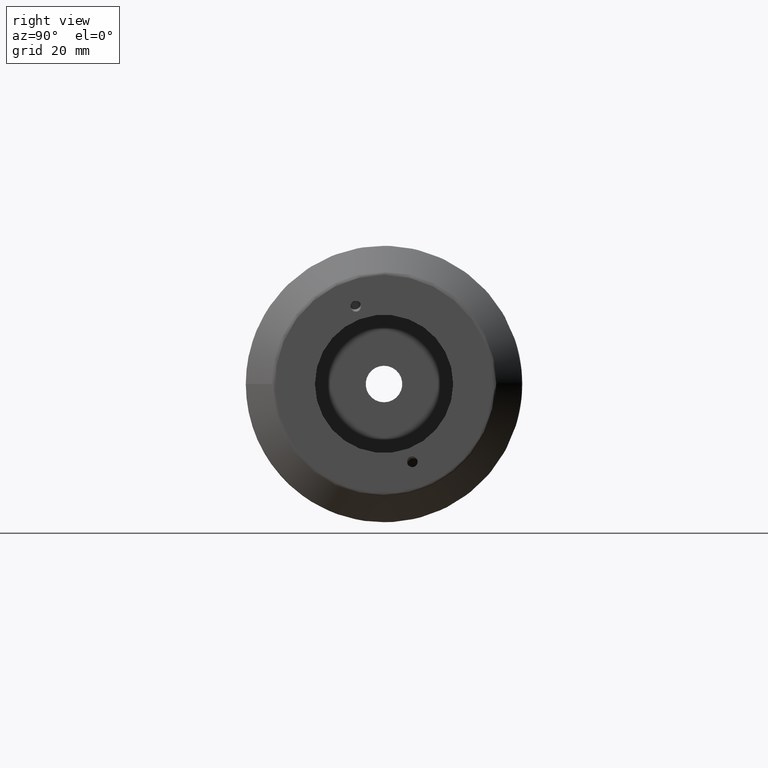
[diagram: clean part render]
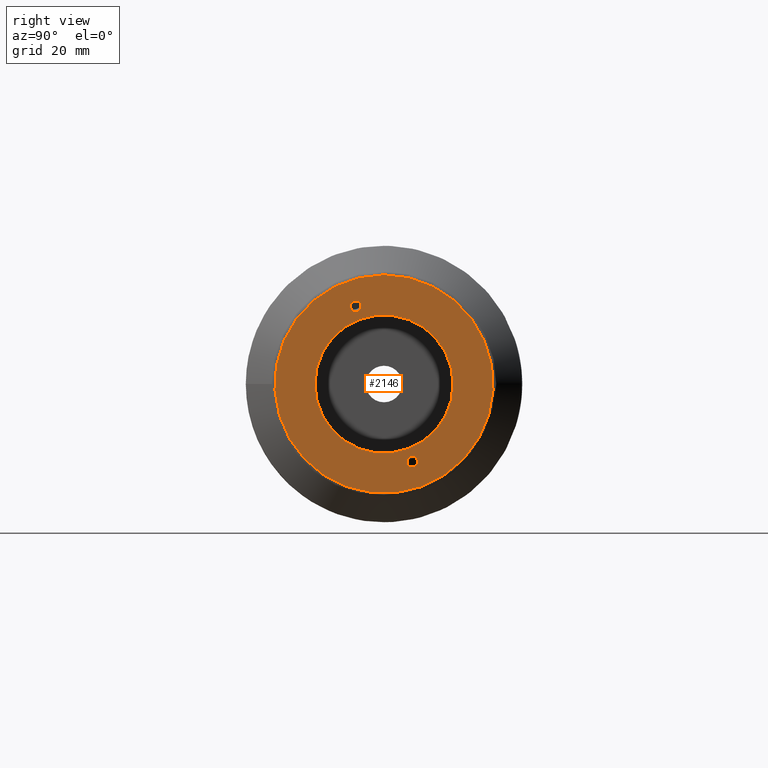
[diagram: same view with one face highlighted and labeled with its STEP entity id]
A machine part, right view. The second image highlights one B-rep face of the part: STEP entity #2146.
In plain terms, the highlighted planar face has unit normal (1, 0, 0).
Its self-contained STEP definition (entity closure, byte-faithful):
#30=PLANE('',#2317);
#101=FACE_BOUND('',#383,.T.);
#102=FACE_BOUND('',#384,.T.);
#103=FACE_BOUND('',#385,.T.);
#187=ELLIPSE('',#2282,1.2302494347154,1.2295);
#188=ELLIPSE('',#2286,1.2302494347154,1.2295);
#252=FACE_OUTER_BOUND('',#382,.T.);
#382=EDGE_LOOP('',(#1511));
#383=EDGE_LOOP('',(#1512));
#384=EDGE_LOOP('',(#1513));
#385=EDGE_LOOP('',(#1514));
#757=CIRCLE('',#2312,25.0857864376269);
#761=CIRCLE('',#2318,15.875);
#873=VERTEX_POINT('',#3197);
#876=VERTEX_POINT('',#3206);
#901=VERTEX_POINT('',#3719);
#904=VERTEX_POINT('',#3729);
#1095=EDGE_CURVE('',#873,#873,#187,.T.);
#1099=EDGE_CURVE('',#876,#876,#188,.T.);
#1135=EDGE_CURVE('',#901,#901,#757,.T.);
#1140=EDGE_CURVE('',#904,#904,#761,.T.);
#1511=ORIENTED_EDGE('',*,*,#1135,.F.);
#1512=ORIENTED_EDGE('',*,*,#1095,.T.);
#1513=ORIENTED_EDGE('',*,*,#1099,.T.);
#1514=ORIENTED_EDGE('',*,*,#1140,.F.);
#2146=ADVANCED_FACE('',(#252,#101,#102,#103),#30,.T.);
#2282=AXIS2_PLACEMENT_3D('',#3198,#2552,#2553);
#2286=AXIS2_PLACEMENT_3D('',#3207,#2562,#2563);
#2312=AXIS2_PLACEMENT_3D('',#3720,#2624,#2625);
#2317=AXIS2_PLACEMENT_3D('',#3728,#2635,#2636);
#2318=AXIS2_PLACEMENT_3D('',#3730,#2637,#2638);
#2552=DIRECTION('center_axis',(-1.,0.,0.));
#2553=DIRECTION('ref_axis',(0.,-0.342020143325627,0.939692620785923));
#2562=DIRECTION('center_axis',(-1.,0.,0.));
#2563=DIRECTION('ref_axis',(0.,0.342020143325628,-0.939692620785923));
#2624=DIRECTION('center_axis',(-1.,0.,0.));
#2625=DIRECTION('ref_axis',(0.,-1.,1.83697019872103E-16));
#2635=DIRECTION('center_axis',(1.,0.,0.));
#2636=DIRECTION('ref_axis',(0.,0.,-1.));
#2637=DIRECTION('center_axis',(1.,0.,0.));
#2638=DIRECTION('ref_axis',(0.,0.,-1.));
#3197=CARTESIAN_POINT('',(110.,-5.26879503238824,17.8536779551318));
#3198=CARTESIAN_POINT('Origin',(110.,-6.4983827231877,17.8541597949323));
#3206=CARTESIAN_POINT('',(110.,5.26879503238824,-17.8536779551318));
#3207=CARTESIAN_POINT('Origin',(110.,6.4983827231877,-17.8541597949323));
#3719=CARTESIAN_POINT('',(110.,-3.07212280649339E-15,25.0857864376269));
#3720=CARTESIAN_POINT('Origin',(110.,0.,0.));
#3728=CARTESIAN_POINT('Origin',(110.,15.875,0.));
#3729=CARTESIAN_POINT('',(110.,-15.875,-1.94412679364642E-15));
#3730=CARTESIAN_POINT('Origin',(110.,0.,0.));